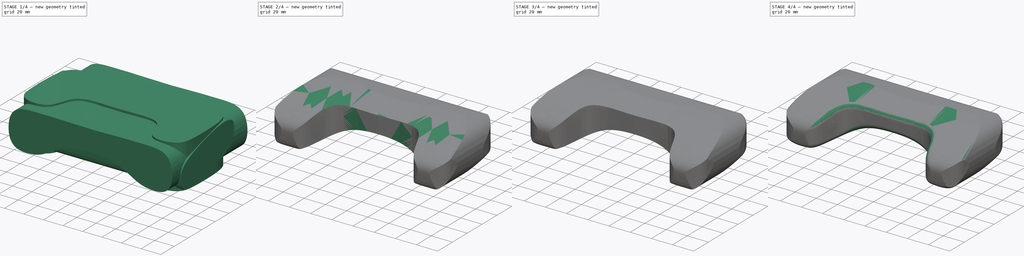
[diagram: build sequence overview — one tinted view per stage of 4, left to right]
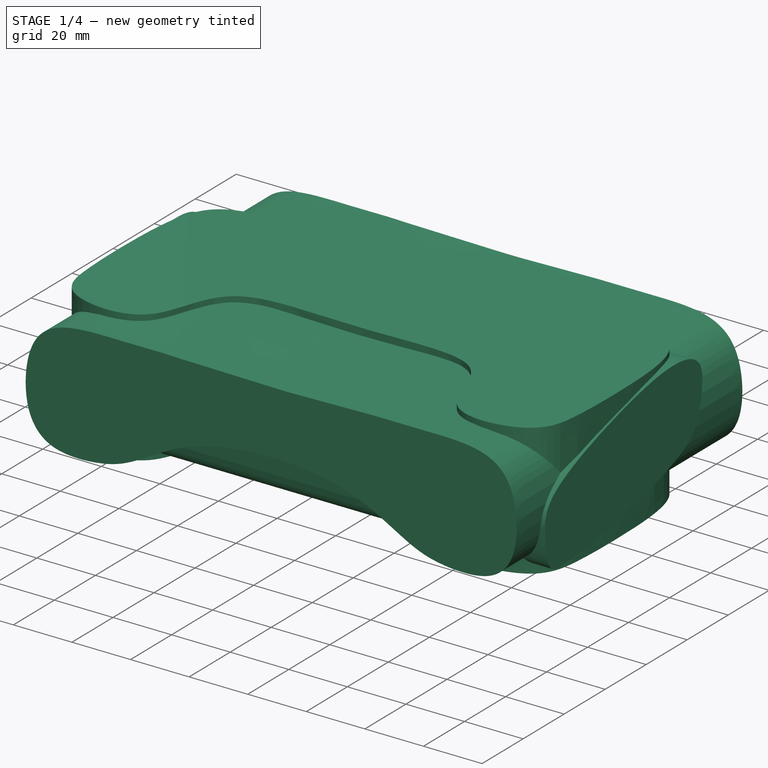
[diagram: stage 1 of 4 — iso view after this stage's code; geometry added in this stage tinted green]
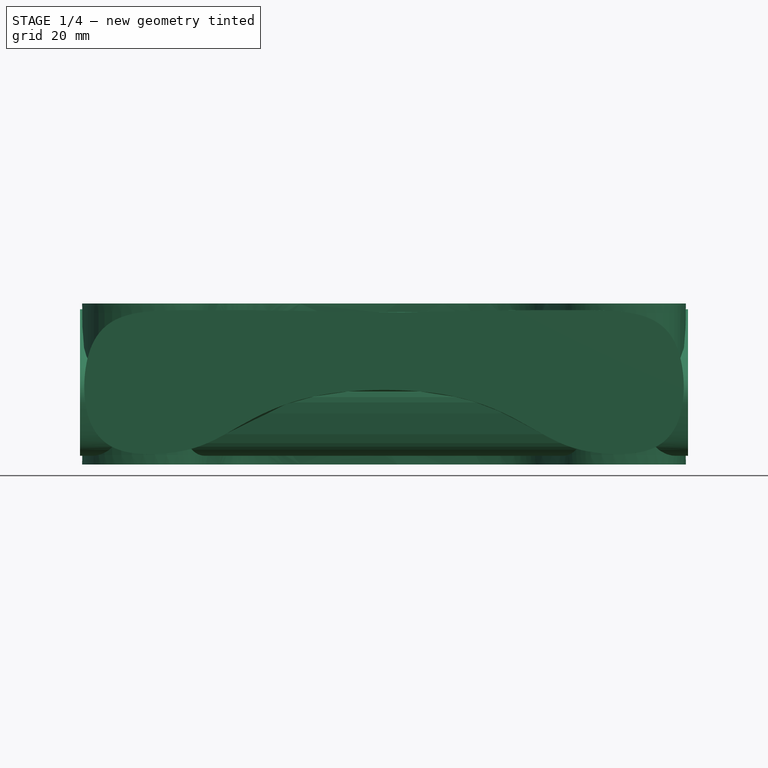
[diagram: stage 1 of 4 — front view after this stage's code; geometry added in this stage tinted green]
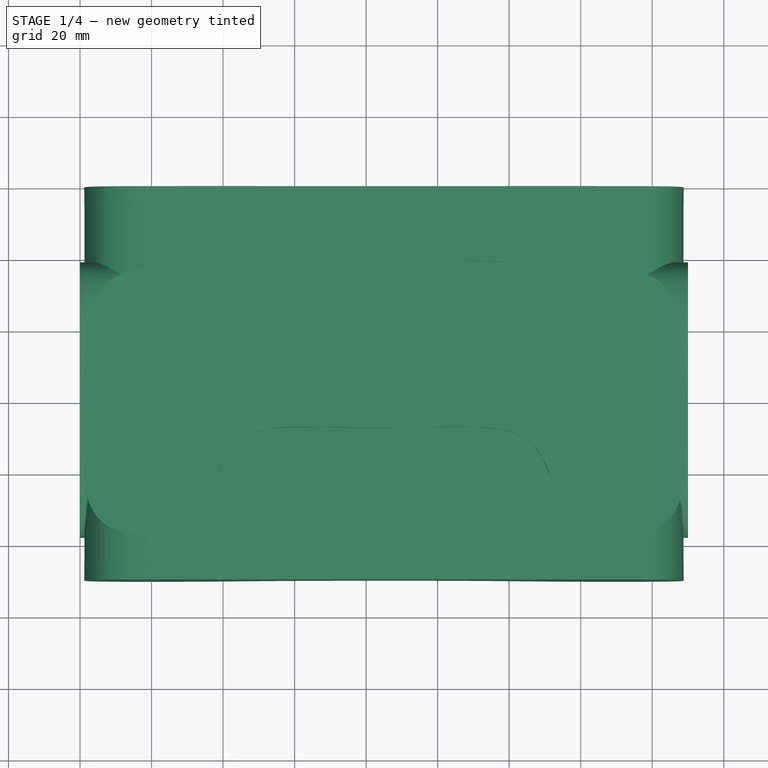
[diagram: stage 1 of 4 — top view after this stage's code; geometry added in this stage tinted green]
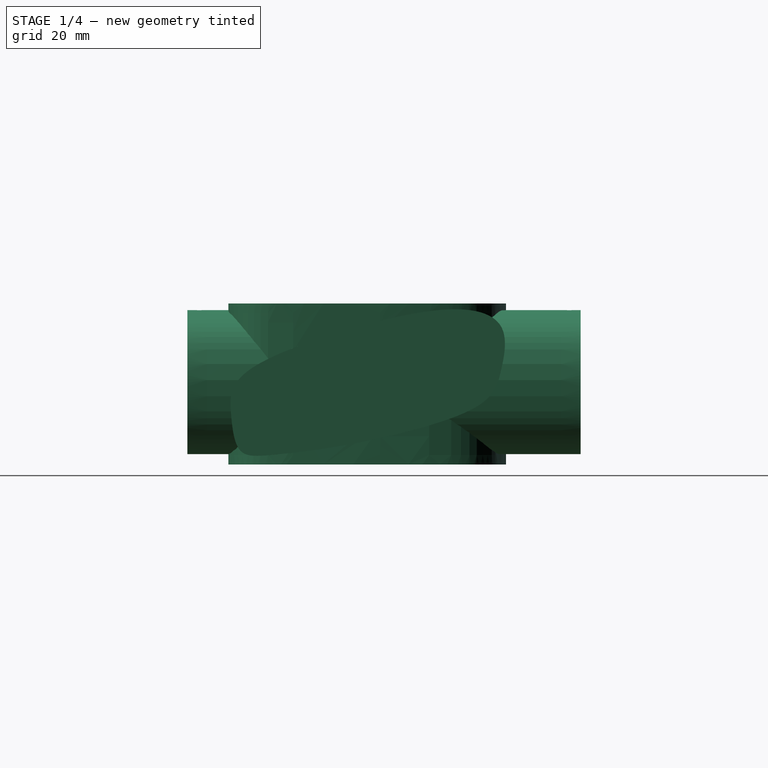
[diagram: stage 1 of 4 — right view after this stage's code; geometry added in this stage tinted green]
FCSTD DOCUMENT  (FreeCAD 0.19R24267 +99 (Git))
Label: Handle
License: All rights reserved
LicenseURL: http://en.wikipedia.org/wiki/All_rights_reserved
objects: PartDesign::Fillet×6, Sketcher::SketchObject×3, PartDesign::Pad×3, PartDesign::Body×3, PartDesign::Boolean×2
note: 26 computed .brp shape members not serialized (recipe doc carries the construction recipe); baked Part::Feature solids carry a one-line shape summary decoded from their .brp

FEATURE [Sketcher::SketchObject] Sketch001
  FullyConstrained = false
  MapMode = 5
  Support = -> [XY_Plane001]
  sketch-geometry (44):
    g0: LineSegment StartX=0 StartY=0 StartZ=0 EndX=170 EndY=0 EndZ=0
    g1: LineSegment StartX=170 StartY=0 StartZ=0 EndX=170 EndY=80 EndZ=0
    g2: LineSegment StartX=170 StartY=80 StartZ=0 EndX=0 EndY=80 EndZ=0
    g3: LineSegment StartX=0 StartY=80 StartZ=0 EndX=0 EndY=0 EndZ=0
    g4: GeomPoint X=85 Y=80 Z=0
    g5: LineSegment StartX=85 StartY=80 StartZ=0 EndX=85 EndY=-24.332 EndZ=0
    g6-g22: Circle x17 (B-spline internal-alignment scaffolding for g23; pole/knot coordinates omitted)
    g23: BSplineCurve PolesCount=17 KnotsCount=18 Degree=3 IsPeriodic=1
    g24-g41: GeomPoint x18 (B-spline internal-alignment scaffolding for g23; pole/knot coordinates omitted)
    g42: GeomPoint X=34.9884 Y=0 Z=0
    g43: GeomPoint X=85 Y=30 Z=0
  constraints (50):
    c: Coincident(g0,g1)
    c: Coincident(g1,g2)
    c: Coincident(g2,g3)
    c: Coincident(g3,g0)
    c: Horizontal(g0)
    c: Horizontal(g2)
    c: Vertical(g1)
    c: Vertical(g3)
    c: Coincident(g0,g-1)
    c: Distance(g2) = 170
    c: Distance(g3) = 80
    c: PointOnObject(g4,g2)
    c: Distance(g4,g3) = 85
    c: Coincident(g5,g4)
    c: Vertical(g5)
    c: Weight(g6) = 1
    c: Equal(g6, g7-g22) x16
    c: InternalAlignment(g6-g22 -> g23) x17
    c: InternalAlignment(g24-g41 -> g23) x18
    c: PointOnObject(g15,g5)
    c: Symmetric(g14,g16,g5)
    c: Symmetric(g13,g17,g5)
    c: Symmetric(g12,g18,g5)
    c: Symmetric(g11,g19,g5)
    c: Symmetric(g10,g20,g5)
    c: Symmetric(g9,g21,g5)
    c: Symmetric(g8,g22,g5)
    c: Symmetric(g7,g6,g5)
    c: PointOnObject(g42,g0)
    c: PointOnObject(g43,g5)
    c: Distance(g43,g0) = 30
    c: DistanceX(g9) = 2.05296
    c: DistanceY(g9) = 72.9575
    c: DistanceX(g8) = 18.3936
    c: DistanceY(g8) = 78.5117
    c: DistanceX(g10) = 0.352871
    c: DistanceY(g10) = 43.1242
    c: DistanceX(g11) = 0.697203
    c: DistanceY(g11) = 18.1083
    c: DistanceX(g12) = 3.67274
    c: DistanceY(g12) = 2.00906
    c: DistanceX(g13) = 38.3664
    c: DistanceY(g13) = -1.28683
    c: DistanceX(g14) = 37.1521
    c: DistanceY(g14) = 36.7027
    c: DistanceX(g7) = 60.5463
    c: DistanceY(g7) = 79.2056
    c: DistanceX(g32) = 85
    c: DistanceY(g32) = 32.2342
    c: Distance(g15,g0) = 30
FEATURE [PartDesign::Pad] Pad
  Direction = (1,1,1)
  Length = 45
  Length2 = 100
  Profile = -> Sketch001
  Type = 0
FEATURE [Sketcher::SketchObject] Sketch002
  FullyConstrained = true
  MapMode = 5
  Placement = pos=(0,0,0) rot=(0.57735,0.57735,0.57735;2.0944rad)
  Support = -> [YZ_Plane]
  sketch-geometry (22):
    g0-g9: Circle x10 (B-spline internal-alignment scaffolding for g10; pole/knot coordinates omitted)
    g10: BSplineCurve PolesCount=10 KnotsCount=11 Degree=3 IsPeriodic=1
    g11-g21: GeomPoint x11 (B-spline internal-alignment scaffolding for g10; pole/knot coordinates omitted)
  constraints (24):
    c: Weight(g0) = 1
    c: Equal(g0, g1-g9) x9
    c: InternalAlignment(g0-g9 -> g10) x10
    c: InternalAlignment(g11-g21 -> g10) x11
    c: DistanceX(g9) = 1.57325
    c: DistanceY(g9) = 26.251
    c: DistanceX(g0) = 2.03837
    c: DistanceY(g0) = 14.3905
    c: DistanceX(g1) = 3.52143
    c: DistanceY(g1) = 1.98689
    c: DistanceX(g2) = 11.661
    c: DistanceY(g2) = 2.33573
    c: DistanceX(g3) = 36.8935
    c: DistanceY(g3) = 5.12643
    c: DistanceX(g8) = 34.4517
    c: DistanceY(g8) = 38.3823
    c: DistanceX(g7) = 65.7307
    c: DistanceY(g7) = 45.359
    c: DistanceX(g6) = 80.6145
    c: DistanceY(g6) = 40.359
    c: DistanceX(g5) = 77.7075
    c: DistanceY(g5) = 25.4753
    c: DistanceX(g4) = 74.8005
    c: DistanceY(g4) = 15.0101
FEATURE [PartDesign::Pad] Pad001
  Direction = (1,1,1)
  Length = 170
  Length2 = 100
  Placement = pos=(0,0,0) rot=(0.57735,0.57735,0.57735;2.0944rad)
  Profile = -> Sketch002
  Type = 0
FEATURE [Sketcher::SketchObject] Sketch
  FullyConstrained = false
  MapMode = 5
  Placement = pos=(0,0,0) rot=(1,0,0;1.5708rad)
  Support = -> [XZ_Plane002]
  sketch-geometry (43):
    g0: LineSegment StartX=85 StartY=70.687 StartZ=0 EndX=85 EndY=-30.8004 EndZ=0
    g1-g20: Circle x20 (B-spline internal-alignment scaffolding for g21; pole/knot coordinates omitted)
    g21: BSplineCurve PolesCount=20 KnotsCount=21 Degree=3 IsPeriodic=1
    g22-g42: GeomPoint x21 (B-spline internal-alignment scaffolding for g21; pole/knot coordinates omitted)
  constraints (36):
    c: Vertical(g0)
    c: Weight(g1) = 1
    c: Equal(g1, g2-g20) x19
    c: InternalAlignment(g1-g20 -> g21) x20
    c: InternalAlignment(g22-g42 -> g21) x21
    c: Symmetric(g4,g5,g0)
    c: Symmetric(g15,g14,g0)
    c: Symmetric(g6,g3,g0)
    c: Symmetric(g2,g7,g0)
    c: Symmetric(g1,g8,g0)
    c: Symmetric(g20,g9,g0)
    c: Symmetric(g19,g10,g0)
    c: Symmetric(g18,g11,g0)
    c: Symmetric(g17,g12,g0)
    c: Symmetric(g16,g13,g0)
    c: Distance(g-1,g0) = 85
    c: DistanceX(g4) = 64.1039
    c: DistanceY(g4) = 42.4818
    c: DistanceX(g3) = 50.0048
    c: DistanceY(g3) = 43.3597
    c: DistanceX(g2) = 36.5961
    c: DistanceY(g2) = 42.9382
    c: DistanceX(g1) = 11.4148
    c: DistanceY(g1) = 43.6387
    c: DistanceX(g20) = 1.35957
    c: DistanceY(g20) = 34.0754
    c: DistanceX(g19) = 0.332529
    c: DistanceY(g19) = 13.1673
    c: DistanceX(g18) = 8.8358
    c: DistanceY(g18) = 2.24507
    c: DistanceX(g17) = 28.3604
    c: DistanceY(g17) = 2.94095
    c: DistanceX(g16) = 39.0551
    c: DistanceY(g16) = 6.92934
    c: DistanceX(g15) = 61.3807
    c: DistanceY(g15) = 21.4642
FEATURE [PartDesign::Pad] Pad002
  Direction = (1,1,1)
  Length = 10
  Length2 = 100
  Placement = pos=(0,0,0) rot=(1,0,0;1.5708rad)
  Profile = -> Sketch
  Type = 4
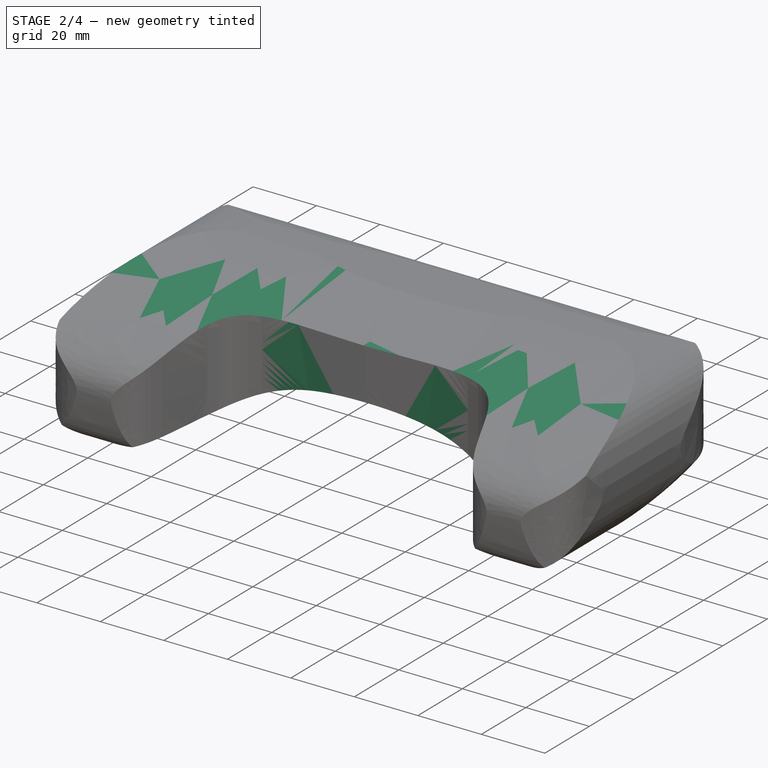
[diagram: stage 2 of 4 — iso view after this stage's code; geometry added in this stage tinted green]
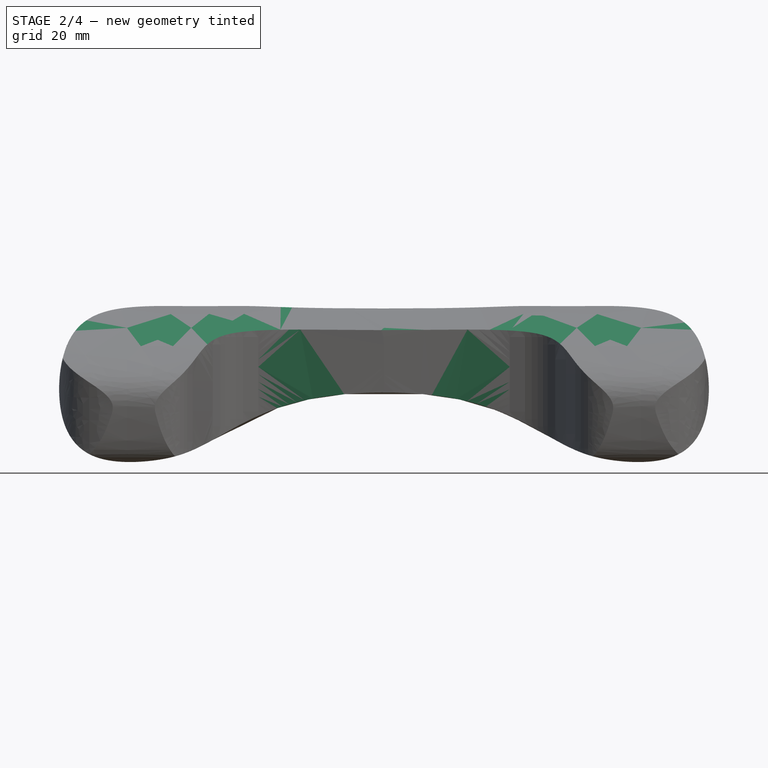
[diagram: stage 2 of 4 — front view after this stage's code; geometry added in this stage tinted green]
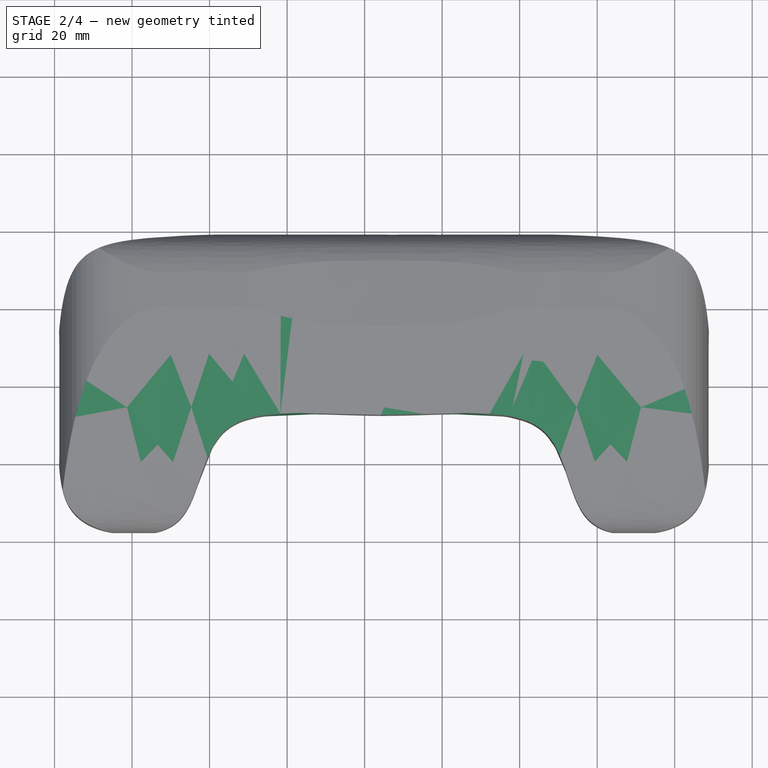
[diagram: stage 2 of 4 — top view after this stage's code; geometry added in this stage tinted green]
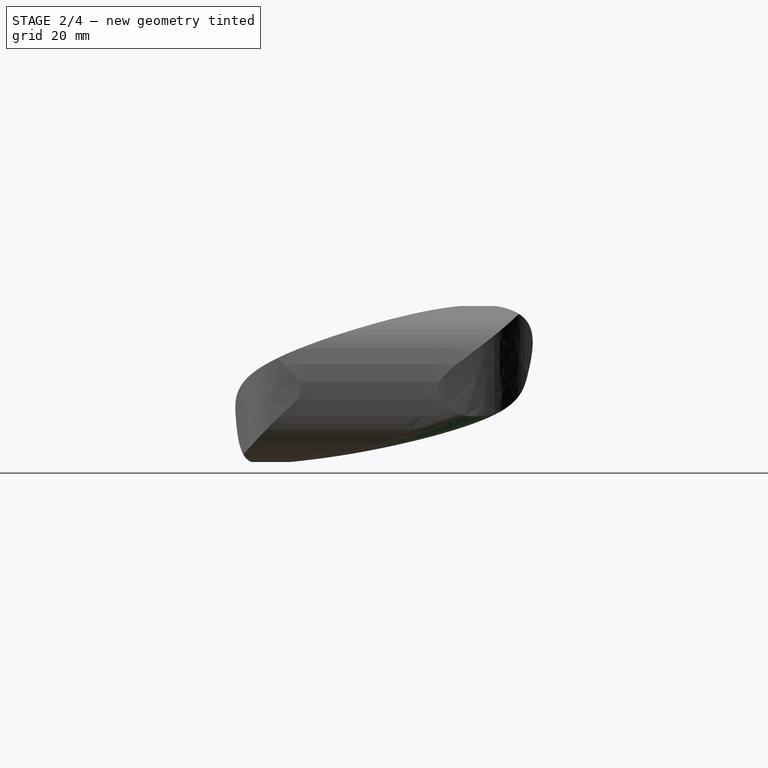
[diagram: stage 2 of 4 — right view after this stage's code; geometry added in this stage tinted green]
FEATURE [PartDesign::Body] Body
  Group = -> [Sketch002,Pad001]
  Origin = -> Origin
  Tip = -> Pad001
FEATURE [PartDesign::Boolean] Boolean
  BaseFeature = -> Pad
  Group = -> [Body]
  Type = 2
FEATURE [PartDesign::Body] Body002
  Group = -> [Sketch,Pad002]
  Origin = -> Origin002
  Tip = -> Pad002
FEATURE [PartDesign::Boolean] Boolean001
  BaseFeature = -> Boolean
  Group = -> [Body002]
  Type = 2
FEATURE [PartDesign::Fillet] Fillet
  Base = -> Boolean001 [Edge15]
  BaseFeature = -> Boolean001
  Radius = 5
  SupportTransform = false
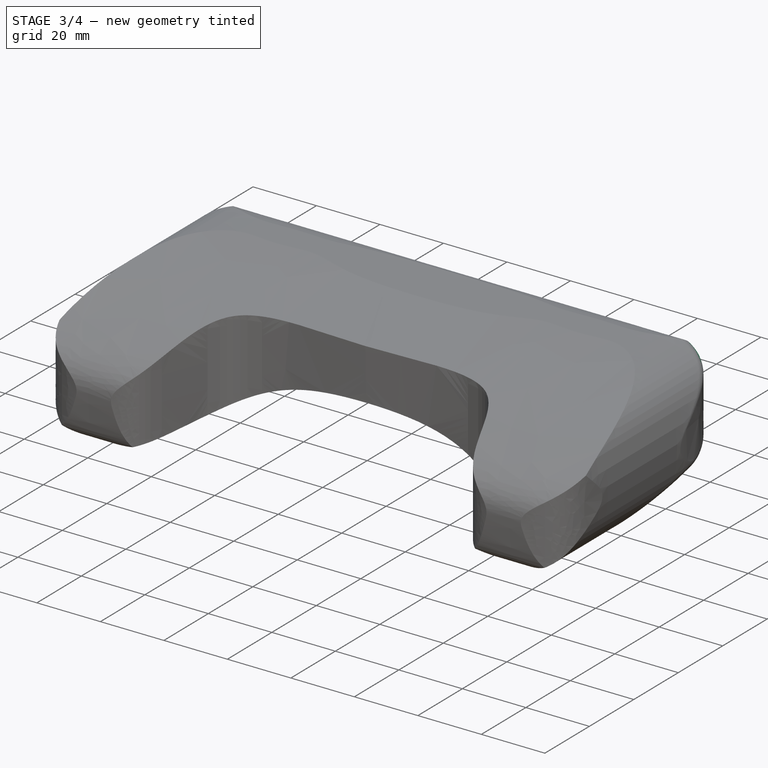
[diagram: stage 3 of 4 — iso view after this stage's code; geometry added in this stage tinted green]
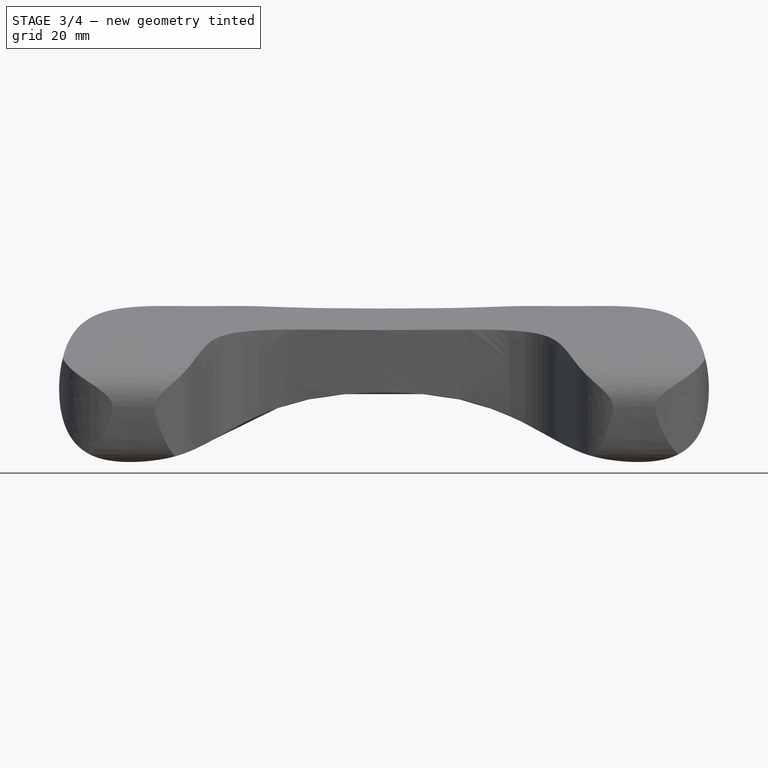
[diagram: stage 3 of 4 — front view after this stage's code; geometry added in this stage tinted green]
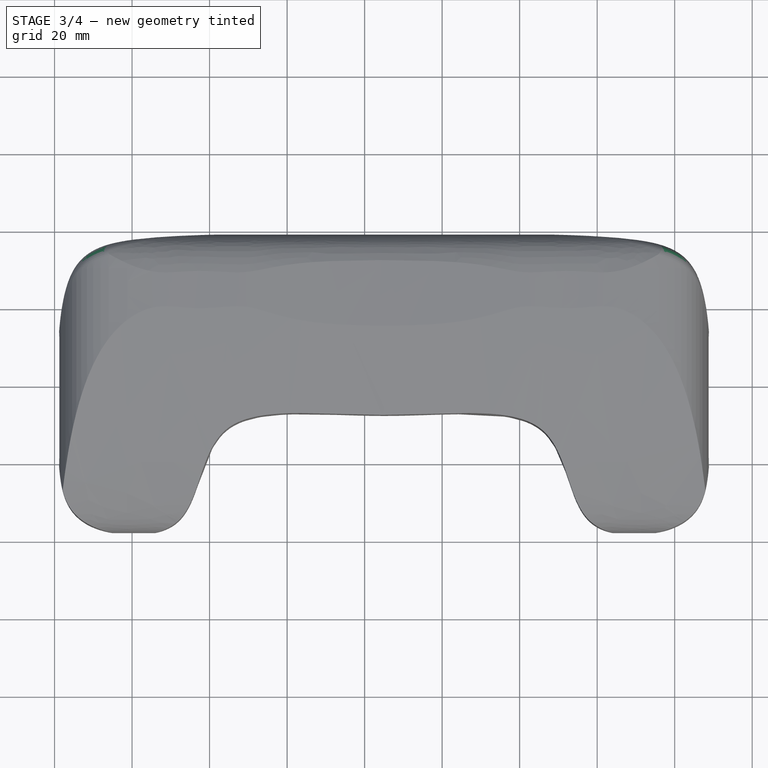
[diagram: stage 3 of 4 — top view after this stage's code; geometry added in this stage tinted green]
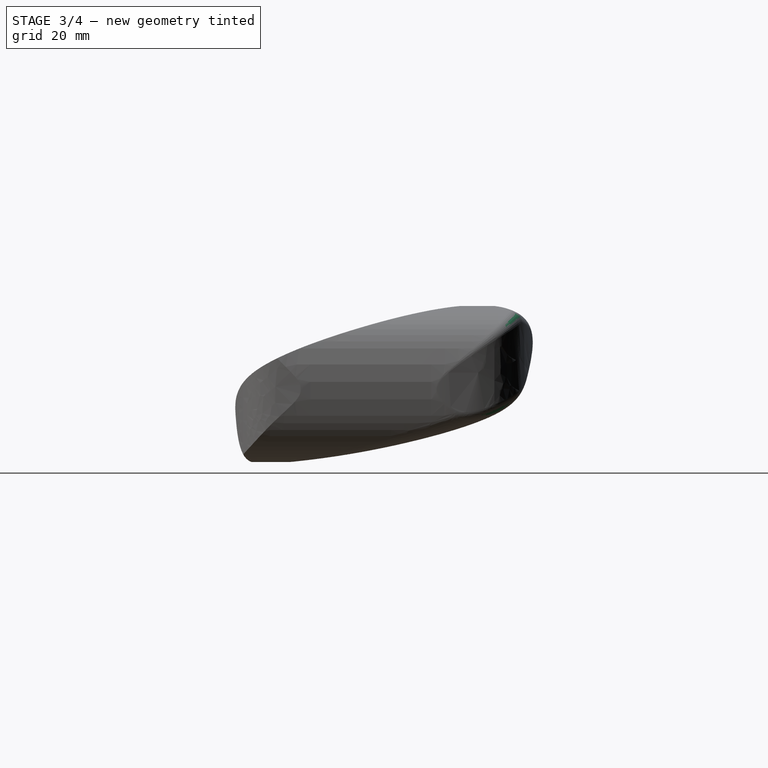
[diagram: stage 3 of 4 — right view after this stage's code; geometry added in this stage tinted green]
FEATURE [PartDesign::Fillet] Fillet001
  Base = -> Fillet [Edge1]
  BaseFeature = -> Fillet
  Radius = 3
  SupportTransform = false
FEATURE [PartDesign::Fillet] Fillet002
  Base = -> Fillet001 [Edge3]
  BaseFeature = -> Fillet001
  Radius = 3
  SupportTransform = false
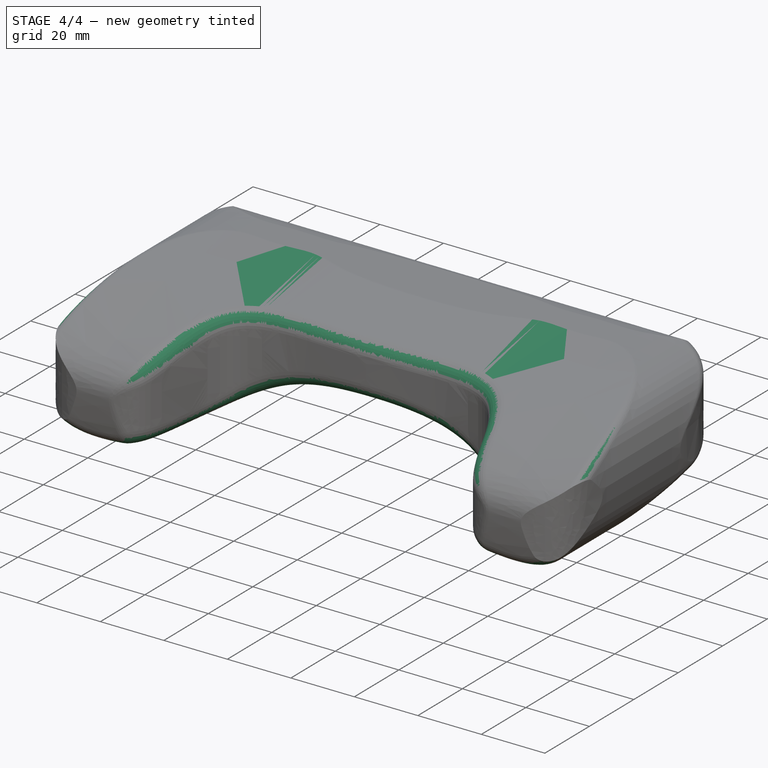
[diagram: stage 4 of 4 — iso view after this stage's code; geometry added in this stage tinted green]
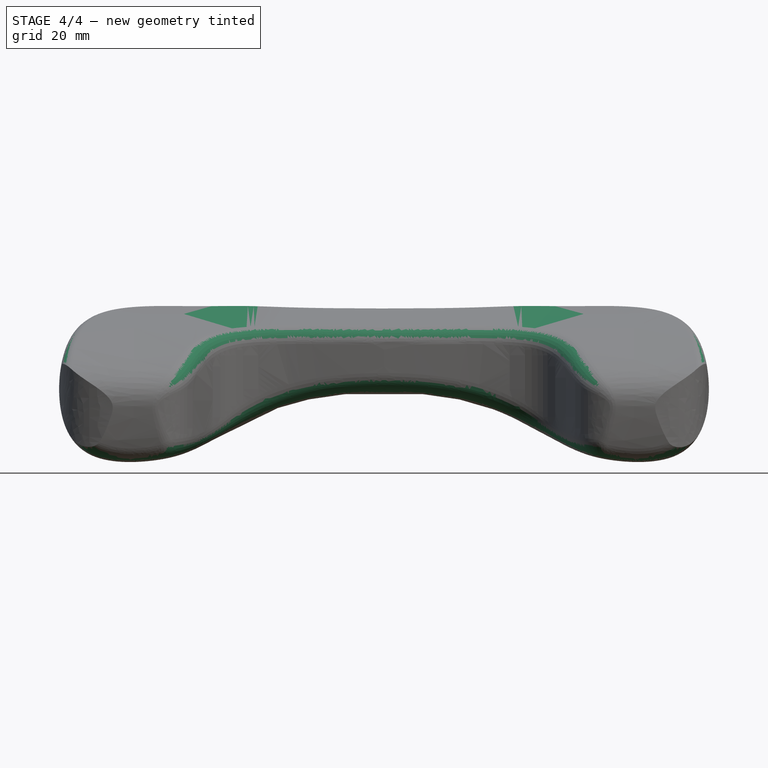
[diagram: stage 4 of 4 — front view after this stage's code; geometry added in this stage tinted green]
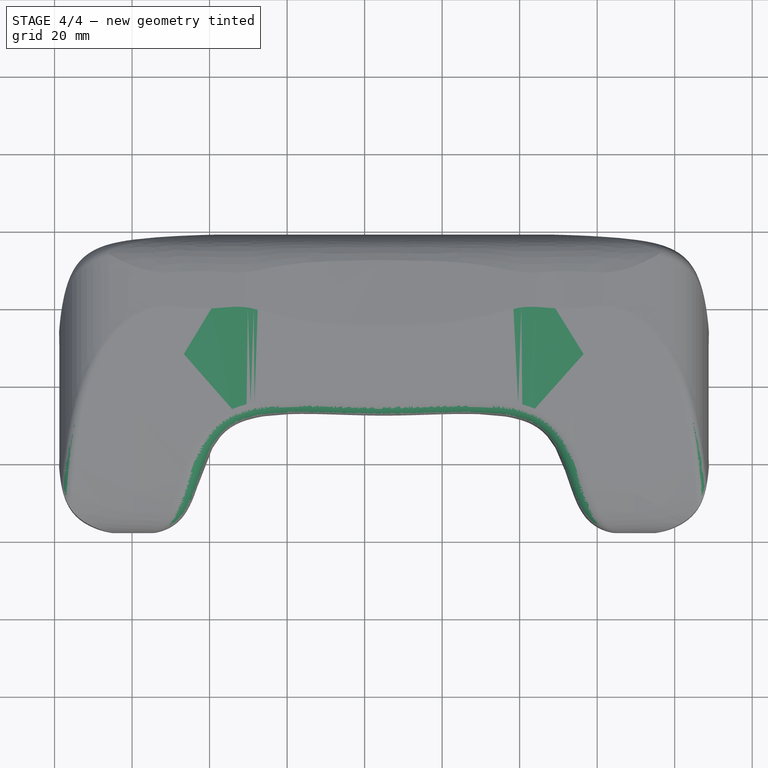
[diagram: stage 4 of 4 — top view after this stage's code; geometry added in this stage tinted green]
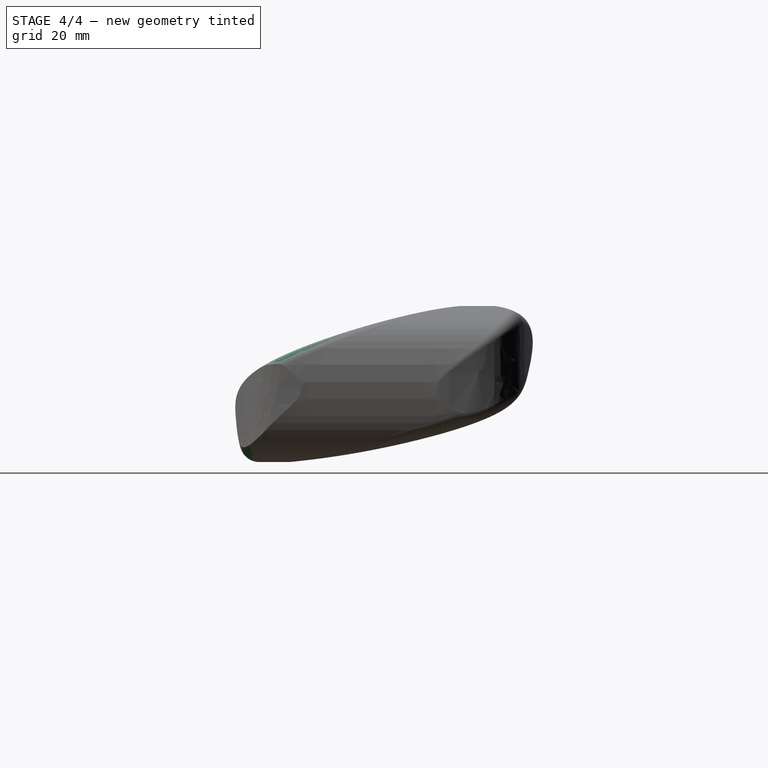
[diagram: stage 4 of 4 — right view after this stage's code; geometry added in this stage tinted green]
FEATURE [PartDesign::Fillet] Fillet003
  Base = -> Fillet002 [Edge32]
  BaseFeature = -> Fillet002
  Radius = 5
  SupportTransform = false
FEATURE [PartDesign::Fillet] Fillet004
  Base = -> Fillet003 [Edge4]
  BaseFeature = -> Fillet003
  Radius = 5
  SupportTransform = false
FEATURE [PartDesign::Fillet] Fillet005
  Base = -> Fillet004 [Edge14]
  BaseFeature = -> Fillet004
  Radius = 3
  SupportTransform = false
FEATURE [PartDesign::Body] Body001
  Group = -> [Sketch001,Pad,Boolean,Boolean001,Fillet,Fillet001,Fillet002,Fillet003,Fillet004,Fillet005]
  Origin = -> Origin001
  Tip = -> Fillet005
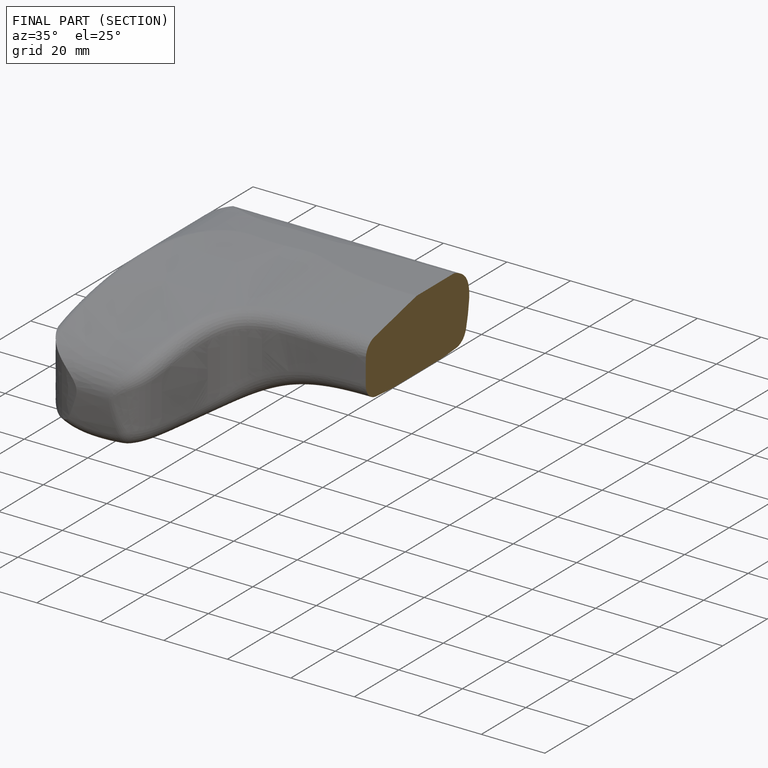
[diagram: finished part — half-section view (interior)]
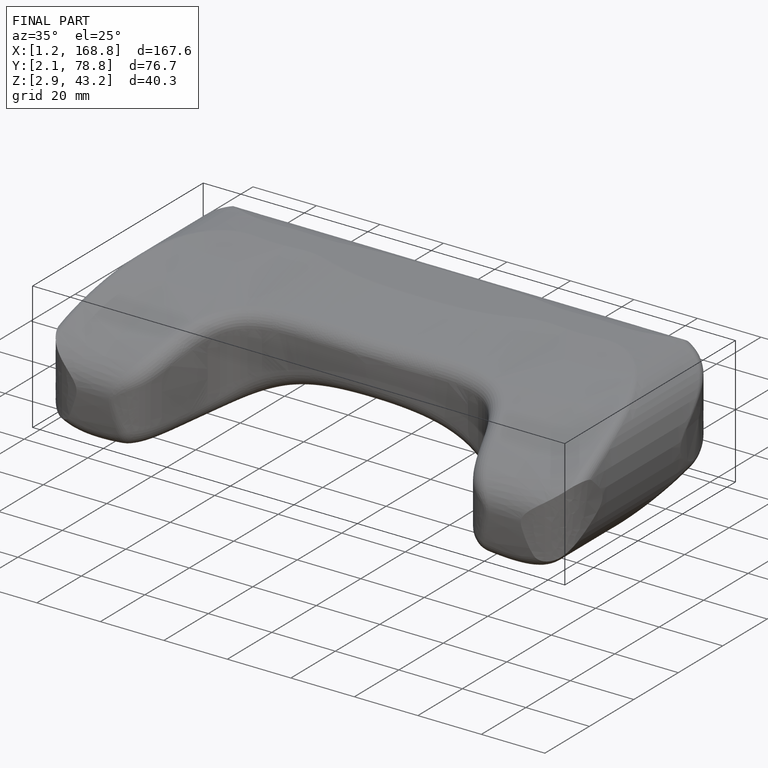
[diagram: finished part — iso view with bounding-box wireframe]
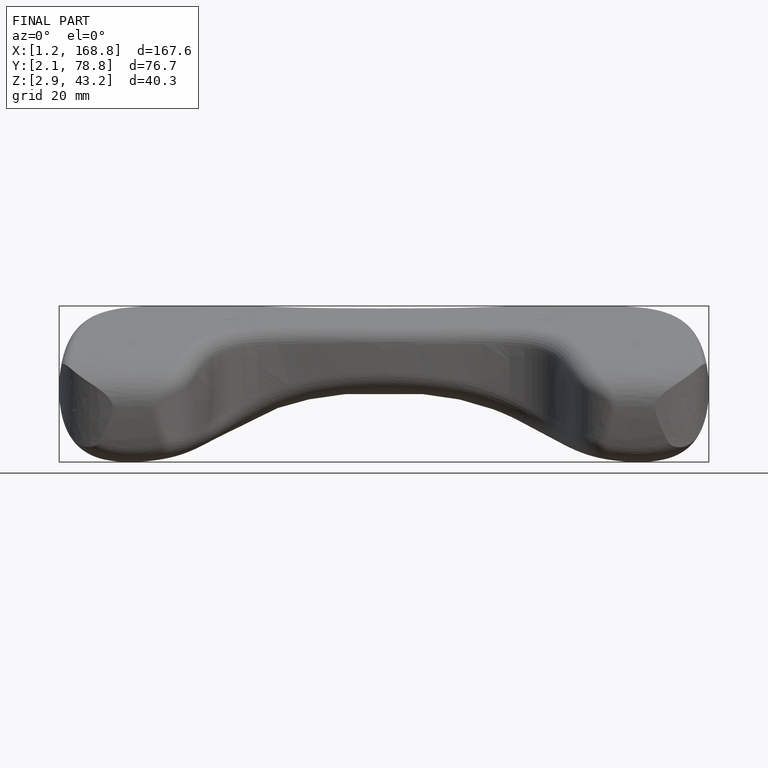
[diagram: finished part — front view with bounding-box wireframe]
